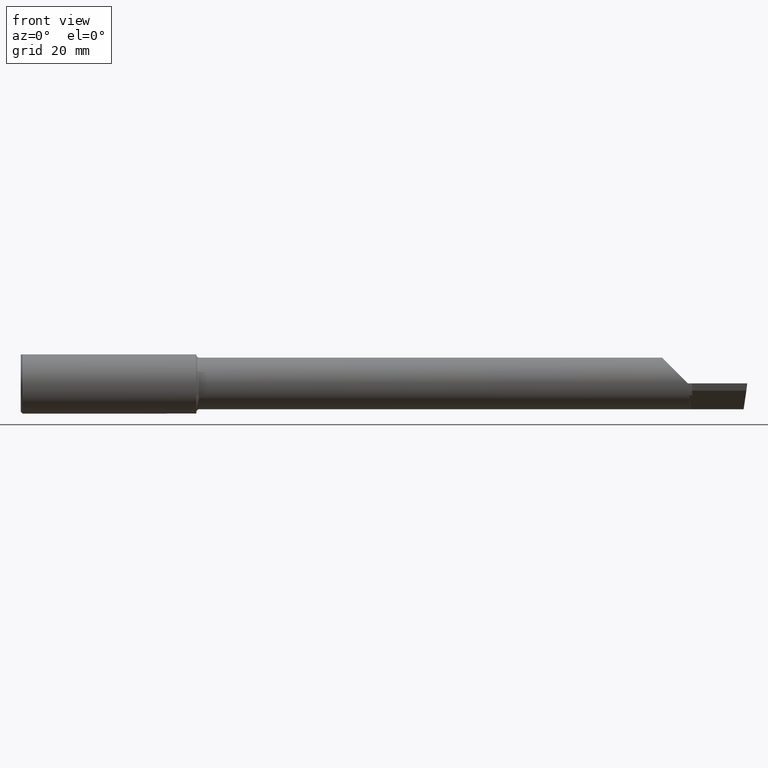
[diagram: clean part render]
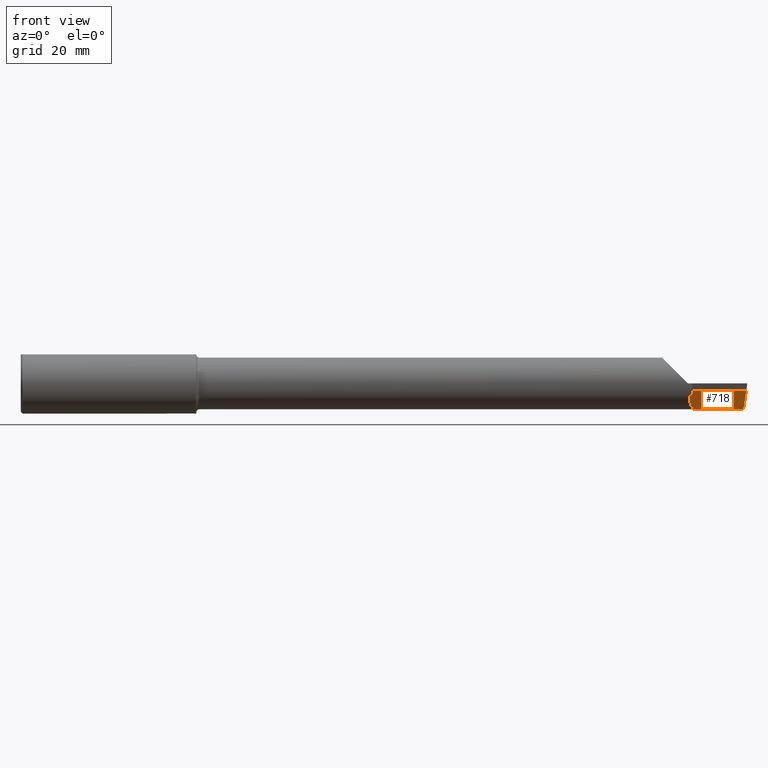
[diagram: same view with one face highlighted and labeled with its STEP entity id]
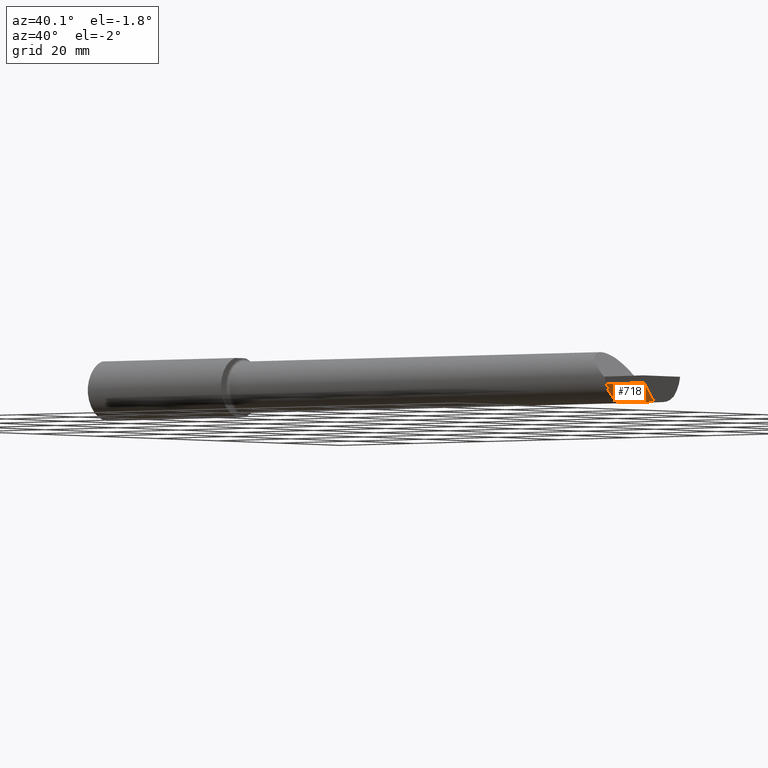
[diagram: same view with one face highlighted and labeled with its STEP entity id]
A machine part, front view. The second image highlights one B-rep face of the part: STEP entity #718.
A second angle (auxiliary view) of the same face is appended — the face is thin or edge-on in the first view.
In plain terms, the highlighted planar face has unit normal (0.0684, 0.71, 0.7009).
Its self-contained STEP definition (entity closure, byte-faithful):
#9 = ORIENTED_EDGE ( 'NONE', *, *, #551, .F. ) ;
#15 = VECTOR ( 'NONE', #47, 39.37007874015748143 ) ;
#17 = DIRECTION ( 'NONE',  ( 0.000000000000000000, -0.7025528302622682242, 0.7116315905652844664 ) ) ;
#26 = CARTESIAN_POINT ( 'NONE',  ( 5.970126340504450013, -0.06507190623553234243, -0.2131499999999999506 ) ) ;
#37 = CARTESIAN_POINT ( 'NONE',  ( 5.540481425188587217, -0.04977693083852387235, -0.1867379188486353037 ) ) ;
#42 = EDGE_CURVE ( 'NONE', #392, #170, #724, .T. ) ;
#46 = LINE ( 'NONE', #269, #340 ) ;
#47 = DIRECTION ( 'NONE',  ( 0.000000000000000000, -0.7025528302622682242, 0.7116315905652844664 ) ) ;
#60 = EDGE_CURVE ( 'NONE', #85, #549, #162, .T. ) ;
#69 = CARTESIAN_POINT ( 'NONE',  ( 5.522499172395929357, -0.1369718963205484863, -0.09666230448512427853 ) ) ;
#80 = EDGE_CURVE ( 'NONE', #549, #161, #315, .T. ) ;
#85 = VERTEX_POINT ( 'NONE', #26 ) ;
#86 = DIRECTION ( 'NONE',  ( -0.06717917588521546413, -0.6976824170844042605, 0.7132504491541850067 ) ) ;
#97 = CARTESIAN_POINT ( 'NONE',  ( 5.519046046773247838, -0.1728339770796961383, -0.06000000000000024064 ) ) ;
#109 = VERTEX_POINT ( 'NONE', #657 ) ;
#122 = ORIENTED_EDGE ( 'NONE', *, *, #232, .F. ) ;
#127 = LINE ( 'NONE', #198, #700 ) ;
#139 = CARTESIAN_POINT ( 'NONE',  ( 5.544999999999999929, -0.1753330585328635449, -0.06000000000000024064 ) ) ;
#161 = VERTEX_POINT ( 'NONE', #661 ) ;
#162 = LINE ( 'NONE', #398, #714 ) ;
#170 = VERTEX_POINT ( 'NONE', #609 ) ;
#195 =( BOUNDED_CURVE ( )  B_SPLINE_CURVE ( 3, ( #682, #37, #671, #735 ),
 .UNSPECIFIED., .F., .T. ) 
 B_SPLINE_CURVE_WITH_KNOTS ( ( 4, 4 ),
 ( 3.425081864342414129, 3.440661644967338617 ),
 .UNSPECIFIED. ) 
 CURVE ( )  GEOMETRIC_REPRESENTATION_ITEM ( )  RATIONAL_B_SPLINE_CURVE ( ( 1.000000000000000000, 0.9999797726385939445, 0.9999797726385939445, 1.000000000000000000 ) ) 
 REPRESENTATION_ITEM ( '' )  );
#198 = CARTESIAN_POINT ( 'NONE',  ( 5.519046046773247838, -0.1728339770796961383, -0.06000000000000024064 ) ) ;
#205 = DIRECTION ( 'NONE',  ( 0.000000000000000000, -0.7025528302622682242, 0.7116315905652844664 ) ) ;
#207 = EDGE_CURVE ( 'NONE', #161, #109, #195, .T. ) ;
#208 = FACE_OUTER_BOUND ( 'NONE', #466, .T. ) ;
#217 = CARTESIAN_POINT ( 'NONE',  ( 5.537805100486888676, -0.1353538176560926676, -0.09979413120599980869 ) ) ;
#221 = VERTEX_POINT ( 'NONE', #139 ) ;
#232 = EDGE_CURVE ( 'NONE', #170, #221, #627, .T. ) ;
#269 = CARTESIAN_POINT ( 'NONE',  ( 5.984159346317754036, -0.1618214701366293695, -0.1165188729350217500 ) ) ;
#294 = CARTESIAN_POINT ( 'NONE',  ( 5.522499172395929357, -0.1369718963205484863, -0.09666230448512427853 ) ) ;
#298 = ORIENTED_EDGE ( 'NONE', *, *, #207, .F. ) ;
#315 = LINE ( 'NONE', #540, #734 ) ;
#340 = VECTOR ( 'NONE', #596, 39.37007874015748143 ) ;
#342 = ORIENTED_EDGE ( 'NONE', *, *, #584, .F. ) ;
#356 = VERTEX_POINT ( 'NONE', #630 ) ;
#357 = DIRECTION ( 'NONE',  ( -0.9953961983671787417, 0.09584575252022424496, -2.614745597736306358E-17 ) ) ;
#363 = ORIENTED_EDGE ( 'NONE', *, *, #60, .F. ) ;
#385 = DIRECTION ( 'NONE',  ( 0.06836202603457079696, 0.7099667855717585185, 0.7009092642998474565 ) ) ;
#392 = VERTEX_POINT ( 'NONE', #69 ) ;
#398 = CARTESIAN_POINT ( 'NONE',  ( 5.988460977461673274, -0.06683733097719074534, -0.2131499999999999506 ) ) ;
#426 = VECTOR ( 'NONE', #694, 39.37007874015748143 ) ;
#446 = CARTESIAN_POINT ( 'NONE',  ( 5.544999999999999929, -0.2196470971618798007, -0.01511331185988424967 ) ) ;
#461 = CARTESIAN_POINT ( 'NONE',  ( 5.544999999999999929, -0.1345157694617467592, -0.1013447517297718370 ) ) ;
#466 = EDGE_LOOP ( 'NONE', ( #469, #342, #122, #636, #9, #298, #701, #363 ) ) ;
#469 = ORIENTED_EDGE ( 'NONE', *, *, #732, .F. ) ;
#509 = PLANE ( 'NONE',  #677 ) ;
#540 = CARTESIAN_POINT ( 'NONE',  ( 5.544999999999999929, -0.2196470971618798007, -0.01511331185988424967 ) ) ;
#549 = VERTEX_POINT ( 'NONE', #672 ) ;
#551 = EDGE_CURVE ( 'NONE', #109, #392, #127, .T. ) ;
#584 = EDGE_CURVE ( 'NONE', #221, #356, #637, .T. ) ;
#596 = DIRECTION ( 'NONE',  ( -0.1020886612874981891, 0.7038430390621323030, -0.7029814233678641777 ) ) ;
#609 = CARTESIAN_POINT ( 'NONE',  ( 5.544999999999999929, -0.1345157694617467592, -0.1013447517297718370 ) ) ;
#627 = LINE ( 'NONE', #446, #15 ) ;
#630 = CARTESIAN_POINT ( 'NONE',  ( 5.992367153641839472, -0.2184096159518783831, -0.06000000000000024758 ) ) ;
#636 = ORIENTED_EDGE ( 'NONE', *, *, #42, .F. ) ;
#637 = LINE ( 'NONE', #97, #426 ) ;
#657 = CARTESIAN_POINT ( 'NONE',  ( 5.531082512009718677, -0.04783050615766583358, -0.1877927888072090101 ) ) ;
#661 = CARTESIAN_POINT ( 'NONE',  ( 5.544999999999999929, -0.05074392122494211788, -0.1861991442216451575 ) ) ;
#671 = CARTESIAN_POINT ( 'NONE',  ( 5.535842168685240594, -0.04880577283880122019, -0.1872691444557822160 ) ) ;
#672 = CARTESIAN_POINT ( 'NONE',  ( 5.544999999999999929, -0.02413689554465596465, -0.2131499999999999506 ) ) ;
#677 = AXIS2_PLACEMENT_3D ( 'NONE', #741, #385, #205 ) ;
#682 = CARTESIAN_POINT ( 'NONE',  ( 5.544999999999999929, -0.05074392122494211788, -0.1861991442216451575 ) ) ;
#694 = DIRECTION ( 'NONE',  ( 0.9953961983671787417, -0.09584575252022421721, -0.000000000000000000 ) ) ;
#700 = VECTOR ( 'NONE', #86, 39.37007874015748143 ) ;
#701 = ORIENTED_EDGE ( 'NONE', *, *, #80, .F. ) ;
#714 = VECTOR ( 'NONE', #357, 39.37007874015748143 ) ;
#718 = ADVANCED_FACE ( 'NONE', ( #208 ), #509, .F. ) ;
#724 =( BOUNDED_CURVE ( )  B_SPLINE_CURVE ( 3, ( #294, #755, #217, #461 ),
 .UNSPECIFIED., .F., .T. ) 
 B_SPLINE_CURVE_WITH_KNOTS ( ( 4, 4 ),
 ( 2.833296237007176366, 2.858103442837169439 ),
 .UNSPECIFIED. ) 
 CURVE ( )  GEOMETRIC_REPRESENTATION_ITEM ( )  RATIONAL_B_SPLINE_CURVE ( ( 1.000000000000000000, 0.9999487175357286706, 0.9999487175357286706, 1.000000000000000000 ) ) 
 REPRESENTATION_ITEM ( '' )  );
#732 = EDGE_CURVE ( 'NONE', #356, #85, #46, .T. ) ;
#734 = VECTOR ( 'NONE', #17, 39.37007874015748143 ) ;
#735 = CARTESIAN_POINT ( 'NONE',  ( 5.531082512009718677, -0.04783050615766583358, -0.1877927888072090101 ) ) ;
#741 = CARTESIAN_POINT ( 'NONE',  ( 5.519046046773247838, -0.1728339770796961383, -0.06000000000000024064 ) ) ;
#755 = CARTESIAN_POINT ( 'NONE',  ( 5.530304439966511332, -0.1361725685965923804, -0.09823323541120104752 ) ) ;